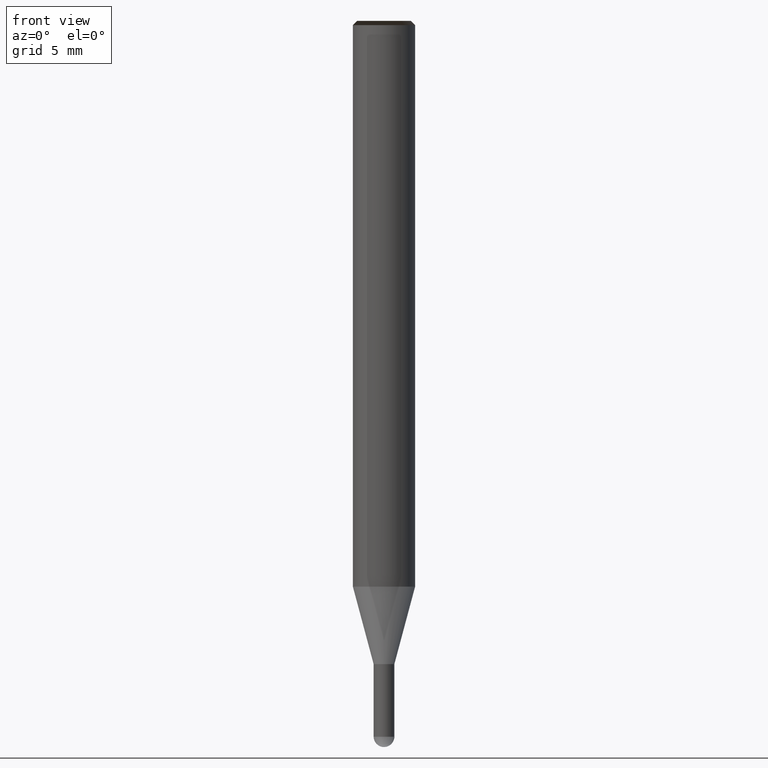
[diagram: clean part render]
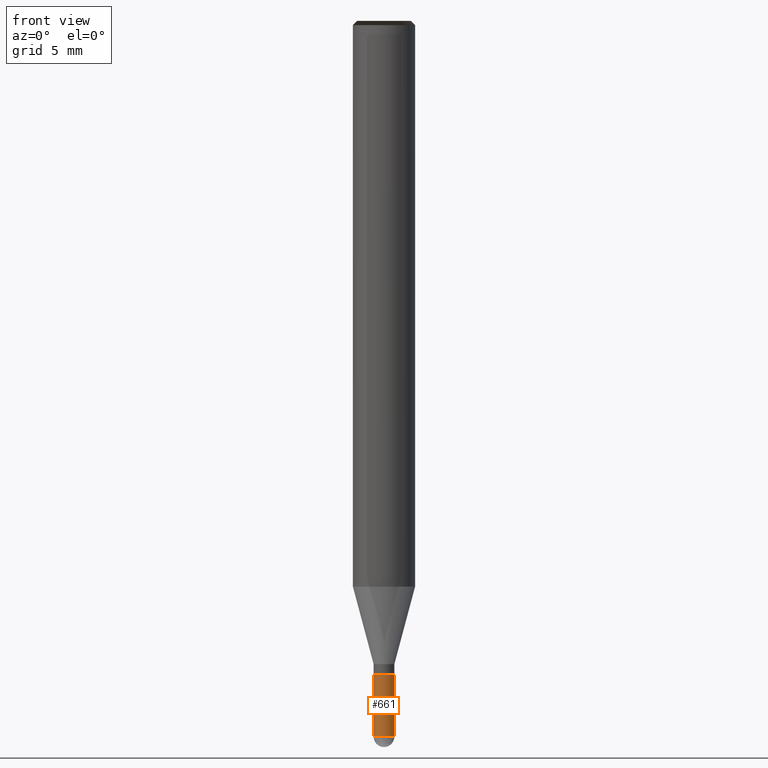
[diagram: same view with one face highlighted and labeled with its STEP entity id]
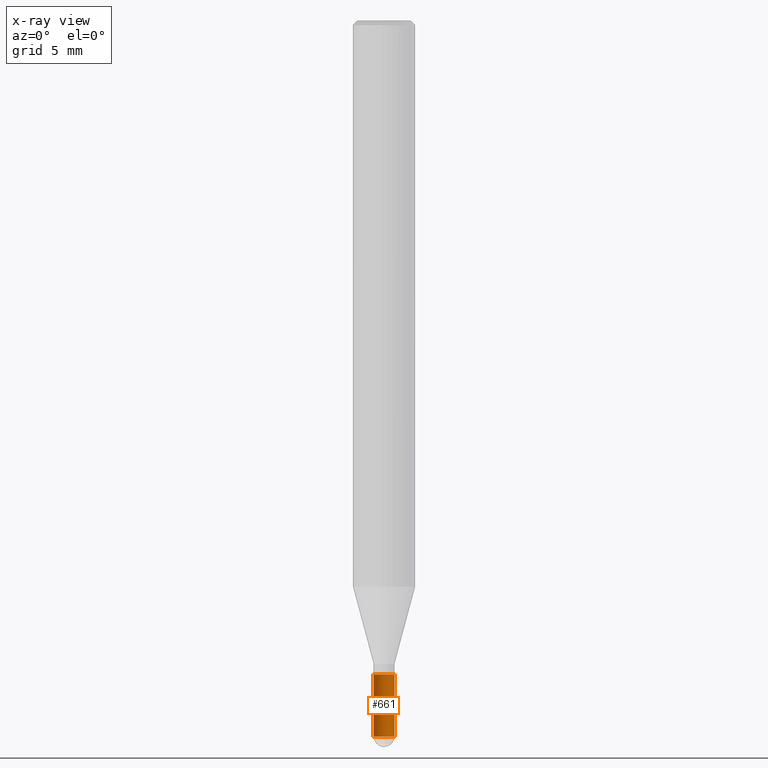
[diagram: x-ray of the same camera — body ghosted, the highlighted face saturated]
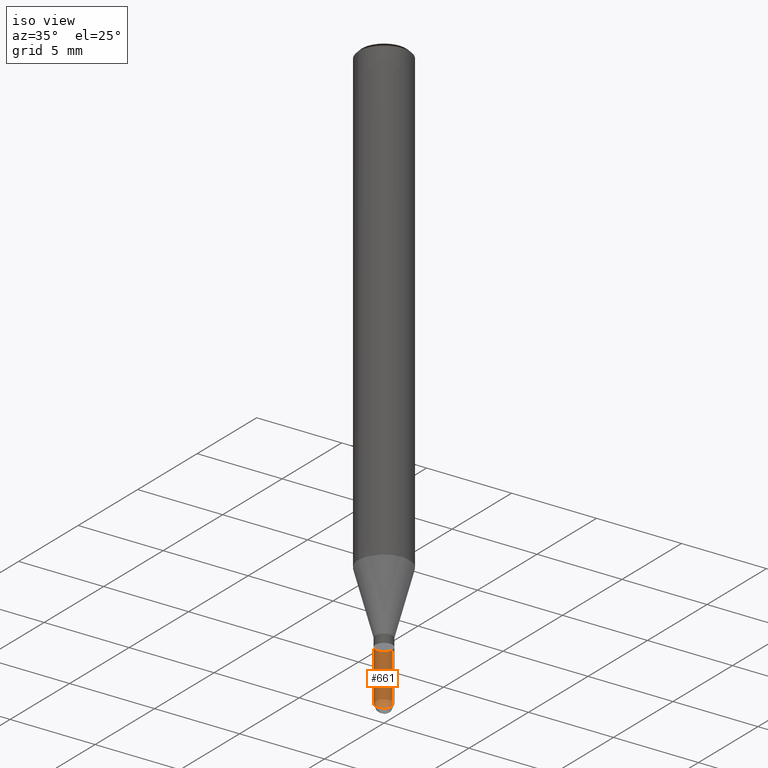
[diagram: same view with one face highlighted and labeled with its STEP entity id]
A machine part, front view. The second image highlights one B-rep face of the part: STEP entity #661.
The next image is the same camera in x-ray: the body ghosted, the highlighted face saturated — about 0% of this face is hidden behind the body in this view.
A second angle (iso view) of the same face is appended — the face is thin or edge-on in the first view.
In plain terms, the highlighted face is a freeform B-spline surface patch.
Its self-contained STEP definition (entity closure, byte-faithful):
#506=CARTESIAN_POINT('',(0.5,0.0,-7.5));
#510=CARTESIAN_POINT('',(-0.5,0.0,-7.5));
#511=CARTESIAN_POINT('',(0.5,0.0,-4.5));
#515=CARTESIAN_POINT('',(-0.5,0.0,-4.5));
#520=CARTESIAN_POINT('',(-0.5,-0.5,-7.5));
#521=CARTESIAN_POINT('',(0.0,-0.5,-7.5));
#522=CARTESIAN_POINT('',(0.5,-0.5,-7.5));
#523=CARTESIAN_POINT('',(-0.5,-0.5,-4.5));
#524=CARTESIAN_POINT('',(0.0,-0.5,-4.5));
#525=CARTESIAN_POINT('',(0.5,-0.5,-4.5));
#642=(
BOUNDED_SURFACE()
B_SPLINE_SURFACE(1,2,(
(#510,#520,#521,#522,#506),
(#515,#523,#524,#525,#511)
), .UNSPECIFIED.,.F.,.F.,.F.)
B_SPLINE_SURFACE_WITH_KNOTS((2,2),(3,2,3),(
0.0,1.0),(
0.0,0.5,1.0), .UNSPECIFIED.)
GEOMETRIC_REPRESENTATION_ITEM()
RATIONAL_B_SPLINE_SURFACE(((1.0,0.707106781187,1.0,0.707106781187,1.0),
(1.0,0.707106781187,1.0,0.707106781187,1.0)
))
REPRESENTATION_ITEM('')
SURFACE()
);
#643=(
BOUNDED_CURVE()
B_SPLINE_CURVE(2,(#506,#522,#521,#520,#510),.UNSPECIFIED.,.F.,.F.)
B_SPLINE_CURVE_WITH_KNOTS((3,2,3),
(0.0,0.5,1.0),.UNSPECIFIED.)
CURVE()
GEOMETRIC_REPRESENTATION_ITEM()
RATIONAL_B_SPLINE_CURVE((1.0,0.707106781187,1.0,0.707106781187,1.0))
REPRESENTATION_ITEM('')
);
#644=(
BOUNDED_CURVE()
B_SPLINE_CURVE(1,(#510,#515),.UNSPECIFIED.,.F.,.F.)
B_SPLINE_CURVE_WITH_KNOTS((2,2),
(0.0,1.0),.UNSPECIFIED.)
CURVE()
GEOMETRIC_REPRESENTATION_ITEM()
RATIONAL_B_SPLINE_CURVE((1.0,1.0))
REPRESENTATION_ITEM('')
);
#645=(
BOUNDED_CURVE()
B_SPLINE_CURVE(2,(#515,#523,#524,#525,#511),.UNSPECIFIED.,.F.,.F.)
B_SPLINE_CURVE_WITH_KNOTS((3,2,3),
(0.0,0.5,1.0),.UNSPECIFIED.)
CURVE()
GEOMETRIC_REPRESENTATION_ITEM()
RATIONAL_B_SPLINE_CURVE((1.0,0.707106781187,1.0,0.707106781187,1.0))
REPRESENTATION_ITEM('')
);
#646=(
BOUNDED_CURVE()
B_SPLINE_CURVE(1,(#511,#506),.UNSPECIFIED.,.F.,.F.)
B_SPLINE_CURVE_WITH_KNOTS((2,2),
(0.0,1.0),.UNSPECIFIED.)
CURVE()
GEOMETRIC_REPRESENTATION_ITEM()
RATIONAL_B_SPLINE_CURVE((1.0,1.0))
REPRESENTATION_ITEM('')
);
#647=VERTEX_POINT('',#506);
#648=VERTEX_POINT('',#510);
#649=VERTEX_POINT('',#511);
#650=VERTEX_POINT('',#515);
#651=EDGE_CURVE('',#647,#648,#643,.T.);
#652=EDGE_CURVE('',#648,#650,#644,.T.);
#653=EDGE_CURVE('',#650,#649,#645,.T.);
#654=EDGE_CURVE('',#649,#647,#646,.T.);
#655=ORIENTED_EDGE('',*,*,#651,.T.);
#656=ORIENTED_EDGE('',*,*,#652,.T.);
#657=ORIENTED_EDGE('',*,*,#653,.T.);
#658=ORIENTED_EDGE('',*,*,#654,.T.);
#659=EDGE_LOOP('',(#655,#656,#657,#658));
#660=FACE_OUTER_BOUND('',#659,.T.);
#661=ADVANCED_FACE('',(#660),#642,.T.);